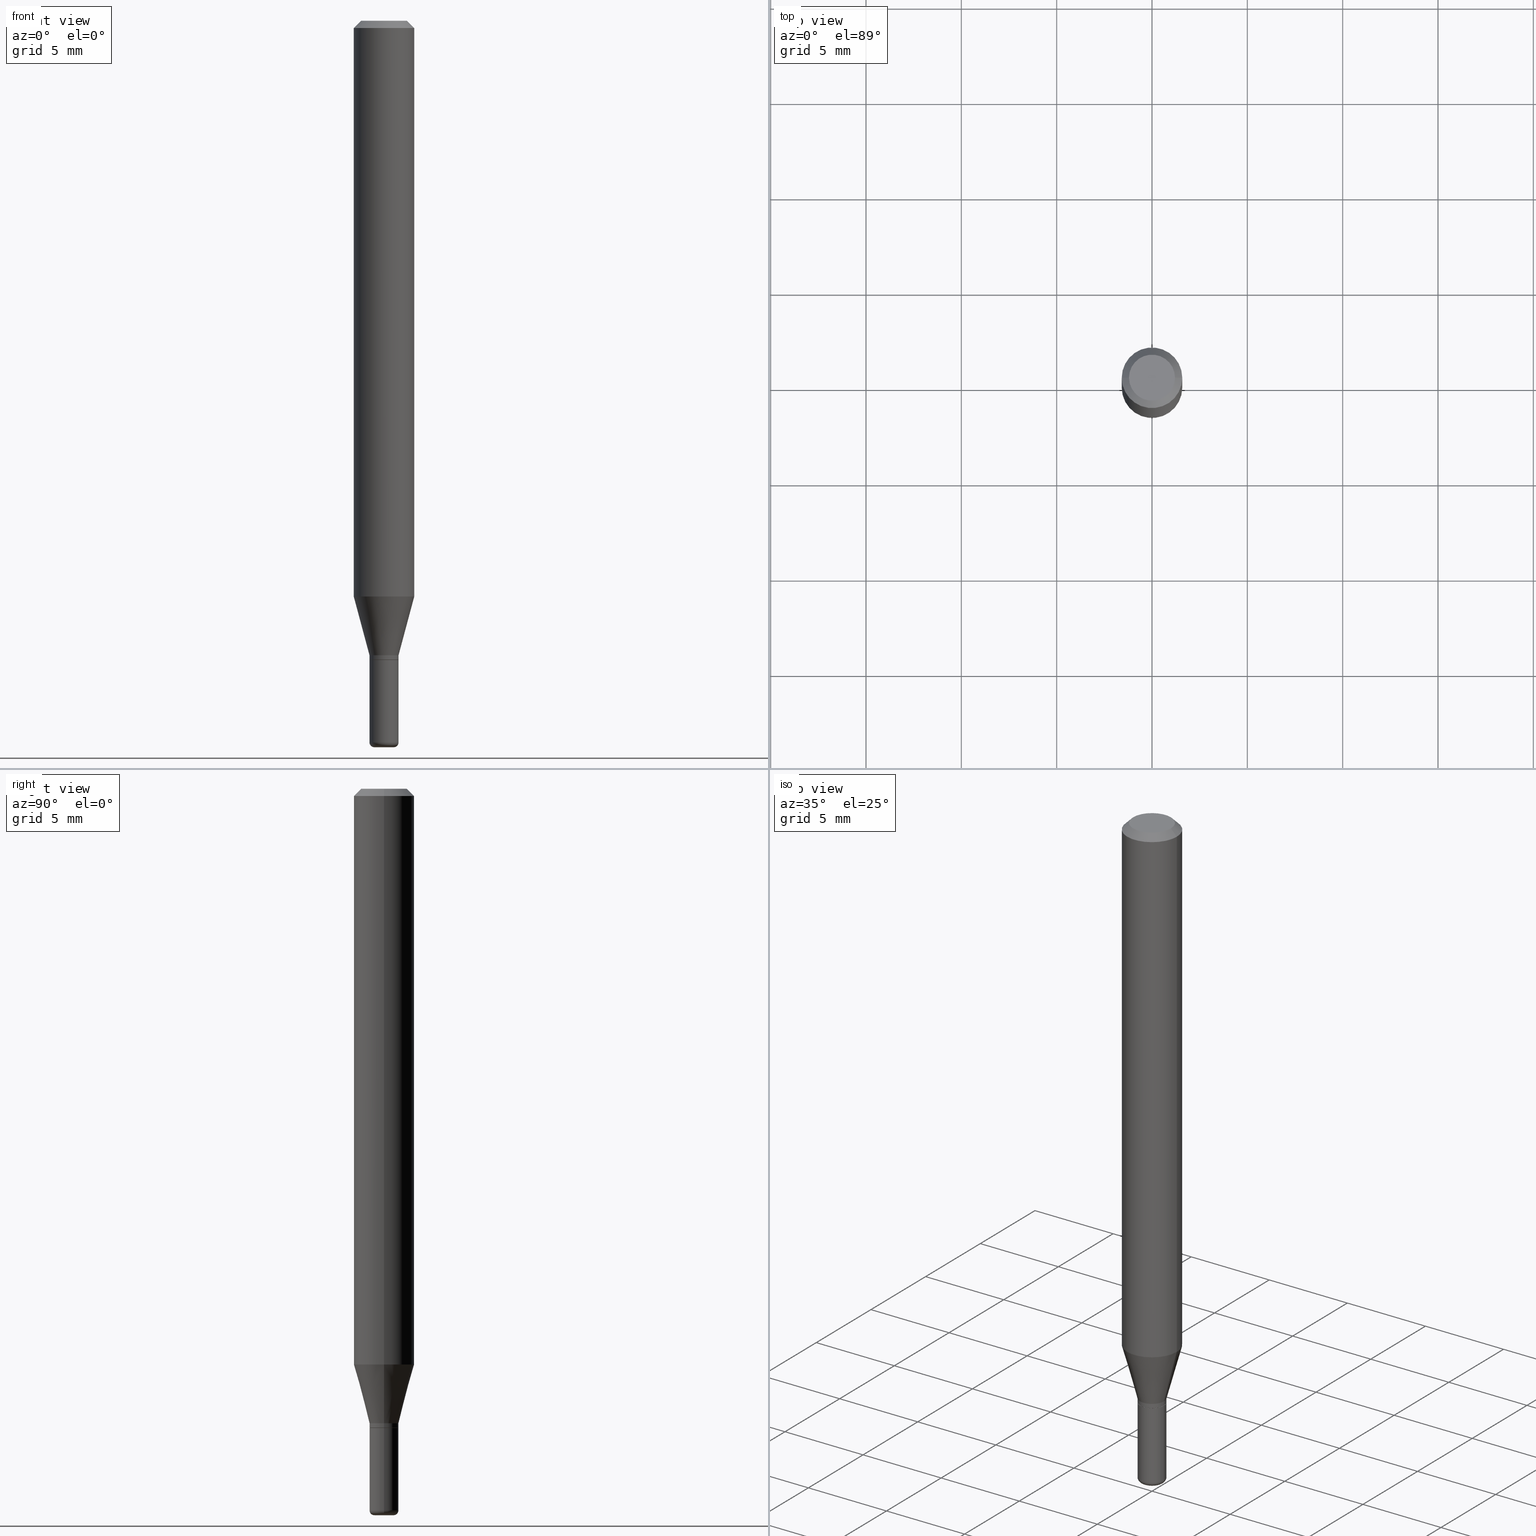
[diagram: canonical four-view strip — front | top / right | iso, engineering-drawing reading convention]
A machine part, canonical four-view strip (front | top / right | iso — engineering-drawing reading convention). The complete STEP part file that produces these views, byte-faithful:
ISO-10303-21;
HEADER;
FILE_DESCRIPTION (( 'STEP AP203' ),
    '1' );
FILE_NAME ('08677.STEP',
    '2024-02-29T20:19:13',
    ( '' ),
    ( '' ),
    'SwSTEP 2.0',
    'SolidWorks 2023',
    '' );
FILE_SCHEMA (( 'CONFIG_CONTROL_DESIGN' ));
ENDSEC;

DATA;
#1 = DIRECTION ( 'NONE',  ( -2.445468806185136597E-29, 3.491481338843145583E-15, 1.000000000000000000 ) ) ;
#2 =( CONVERSION_BASED_UNIT ( 'INCH', #357 ) LENGTH_UNIT ( ) NAMED_UNIT ( #245 ) );
#3 = CC_DESIGN_PERSON_AND_ORGANIZATION_ASSIGNMENT ( #103, #423, ( #512 ) ) ;
#4 = COORDINATED_UNIVERSAL_TIME_OFFSET ( 5, 0, .BEHIND. ) ;
#5 = CARTESIAN_POINT ( 'NONE',  ( -6.680649051745406845E-45, 9.538196290434862081E-31, 2.731847993664263218E-16 ) ) ;
#6 = CIRCLE ( 'NONE', #300, 0.009999999999999944697 ) ;
#7 =( NAMED_UNIT ( * ) SI_UNIT ( $, .STERADIAN. ) SOLID_ANGLE_UNIT ( ) );
#8 = MANIFOLD_SOLID_BREP ( 'Body-Move/Copy2[1]', #140 ) ;
#9 = EDGE_CURVE ( 'NONE', #190, #275, #513, .T. ) ;
#10 = DIRECTION ( 'NONE',  ( -0.7071067811865479058, 2.468850131082261005E-15, -0.7071067811865471286 ) ) ;
#11 = AXIS2_PLACEMENT_3D ( 'NONE', #143, #45, #207 ) ;
#12 = PERSON_AND_ORGANIZATION ( #208, #430 ) ;
#13 = AXIS2_PLACEMENT_3D ( 'NONE', #287, #46, #321 ) ;
#14 = ORIENTED_EDGE ( 'NONE', *, *, #517, .T. ) ;
#15 = CARTESIAN_POINT ( 'NONE',  ( -0.04750000000000000749, 3.578768372314221353E-16, 2.731847993664239060E-16 ) ) ;
#16 = FACE_OUTER_BOUND ( 'NONE', #494, .T. ) ;
#17 = EDGE_CURVE ( 'NONE', #500, #226, #242, .T. ) ;
#18 = DIRECTION ( 'NONE',  ( 1.000000000000000000, -6.982962677686282488E-15, 0.000000000000000000 ) ) ;
#19 = CARTESIAN_POINT ( 'NONE',  ( -0.02999999999999996073, 2.131628207280297767E-16, -1.475680527076469955E-30 ) ) ;
#20 = ORIENTED_EDGE ( 'NONE', *, *, #153, .F. ) ;
#21 = CARTESIAN_POINT ( 'NONE',  ( 0.000000000000000000, 0.000000000000000000, 0.000000000000000000 ) ) ;
#22 = DIRECTION ( 'NONE',  ( -2.445468806185136597E-29, 3.491481338843145583E-15, 1.000000000000000000 ) ) ;
#23 = SECURITY_CLASSIFICATION_LEVEL ( 'unclassified' ) ;
#24 = CIRCLE ( 'NONE', #13, 0.04750000000000000749 ) ;
#25 = CARTESIAN_POINT ( 'NONE',  ( 3.668203209277632395E-31, -5.237222008264614861E-17, -0.01499999999999970281 ) ) ;
#26 = ADVANCED_FACE ( 'NONE', ( #311 ), #389, .F. ) ;
#27 = ORIENTED_EDGE ( 'NONE', *, *, #305, .T. ) ;
#28 = VERTEX_POINT ( 'NONE', #251 ) ;
#29 = DIRECTION ( 'NONE',  ( -2.445468806185136597E-29, 3.491481338843145583E-15, 1.000000000000000000 ) ) ;
#30 = APPROVAL_STATUS ( 'not_yet_approved' ) ;
#31 = ORIENTED_EDGE ( 'NONE', *, *, #364, .T. ) ;
#32 = AXIS2_PLACEMENT_3D ( 'NONE', #431, #471, #160 ) ;
#33 = AXIS2_PLACEMENT_3D ( 'NONE', #5, #106, #368 ) ;
#34 = ORIENTED_EDGE ( 'NONE', *, *, #351, .F. ) ;
#35 = VERTEX_POINT ( 'NONE', #86 ) ;
#36 = EDGE_CURVE ( 'NONE', #195, #63, #255, .T. ) ;
#37 = EDGE_LOOP ( 'NONE', ( #113, #406, #267, #239 ) ) ;
#38 = DIRECTION ( 'NONE',  ( 1.000000000000000000, -6.982962677686265922E-15, 4.876176775795935793E-29 ) ) ;
#39 = DIRECTION ( 'NONE',  ( -2.445468806185136597E-29, 3.491481338843145583E-15, 1.000000000000000000 ) ) ;
#40 = CC_DESIGN_PERSON_AND_ORGANIZATION_ASSIGNMENT ( #342, #286, ( #204 ) ) ;
#41 = LINE ( 'NONE', #353, #149 ) ;
#42 = PRODUCT_DEFINITION_SHAPE ( 'NONE', 'NONE',  #201 ) ;
#43 = AXIS2_PLACEMENT_3D ( 'NONE', #181, #499, #400 ) ;
#44 = LOCAL_TIME ( 15, 19, 13.00000000000000000, #132 ) ;
#45 = DIRECTION ( 'NONE',  ( -2.445468806185136597E-29, 3.491481338843145583E-15, 1.000000000000000000 ) ) ;
#46 = DIRECTION ( 'NONE',  ( -2.445468806185136597E-29, 3.491481338843145583E-15, 1.000000000000000000 ) ) ;
#47 = FACE_OUTER_BOUND ( 'NONE', #505, .T. ) ;
#48 = DATE_AND_TIME ( #437, #44 ) ;
#49 = AXIS2_PLACEMENT_3D ( 'NONE', #374, #295, #333 ) ;
#50 = AXIS2_PLACEMENT_3D ( 'NONE', #64, #232, #258 ) ;
#51 = LINE ( 'NONE', #218, #122 ) ;
#52 = EDGE_CURVE ( 'NONE', #28, #195, #213, .T. ) ;
#53 = ORIENTED_EDGE ( 'NONE', *, *, #387, .T. ) ;
#54 = DIRECTION ( 'NONE',  ( 7.105427357601001859E-15, 1.000000000000000000, -3.491481338843145583E-15 ) ) ;
#55 = CARTESIAN_POINT ( 'NONE',  ( 3.228018824164380442E-29, -4.608755367272952437E-15, -1.320000000000000062 ) ) ;
#56 = ORIENTED_EDGE ( 'NONE', *, *, #36, .T. ) ;
#57 = CARTESIAN_POINT ( 'NONE',  ( -0.02999999999999997113, 2.131628207280298507E-16, -1.475680527076470305E-30 ) ) ;
#58 = DIRECTION ( 'NONE',  ( -0.7071067811866199593, 7.493145998870616062E-15, 0.7071067811864750752 ) ) ;
#59 = ORIENTED_EDGE ( 'NONE', *, *, #351, .T. ) ;
#60 = ADVANCED_FACE ( 'NONE', ( #47 ), #252, .T. ) ;
#61 = CARTESIAN_POINT ( 'NONE',  ( 3.668203209277704895E-29, -5.237222008264718177E-15, -1.500000000000000222 ) ) ;
#62 = DIRECTION ( 'NONE',  ( 2.438088387897960049E-29, -3.491481338843145188E-15, -1.000000000000000000 ) ) ;
#63 = VERTEX_POINT ( 'NONE', #395 ) ;
#64 = CARTESIAN_POINT ( 'NONE',  ( 0.000000000000000000, 0.000000000000000000, 0.000000000000000000 ) ) ;
#65 = PLANE ( 'NONE',  #515 ) ;
#66 = ORIENTED_EDGE ( 'NONE', *, *, #467, .F. ) ;
#67 = AXIS2_PLACEMENT_3D ( 'NONE', #417, #29, #265 ) ;
#68 = DIRECTION ( 'NONE',  ( 1.000000000000000000, -6.982962677686270655E-15, 0.000000000000000000 ) ) ;
#69 = CC_DESIGN_APPROVAL ( #510, ( #201 ) ) ;
#70 = ORIENTED_EDGE ( 'NONE', *, *, #216, .F. ) ;
#71 = ORIENTED_EDGE ( 'NONE', *, *, #194, .F. ) ;
#72 = ORIENTED_EDGE ( 'NONE', *, *, #77, .T. ) ;
#73 = ORIENTED_EDGE ( 'NONE', *, *, #432, .T. ) ;
#74 = ORIENTED_EDGE ( 'NONE', *, *, #477, .T. ) ;
#75 = CIRCLE ( 'NONE', #212, 0.02999999999999997113 ) ;
#76 = CONICAL_SURFACE ( 'NONE', #189, 0.06250000000000000000, 0.7853981633974488341 ) ;
#77 = EDGE_CURVE ( 'NONE', #28, #107, #496, .T. ) ;
#78 = PERSON_AND_ORGANIZATION ( #208, #430 ) ;
#79 = EDGE_LOOP ( 'NONE', ( #373, #241, #468, #466 ) ) ;
#80 = DIRECTION ( 'NONE',  ( -6.982962677686266711E-15, -1.000000000000000000, 3.491481338843145583E-15 ) ) ;
#81 = CARTESIAN_POINT ( 'NONE',  ( 0.000000000000000000, 0.000000000000000000, 0.000000000000000000 ) ) ;
#82 = PERSON_AND_ORGANIZATION_ROLE ( 'creator' ) ;
#83 =( GEOMETRIC_REPRESENTATION_CONTEXT ( 3 ) GLOBAL_UNCERTAINTY_ASSIGNED_CONTEXT ( ( #139 ) ) GLOBAL_UNIT_ASSIGNED_CONTEXT ( ( #2, #125, #7 ) ) REPRESENTATION_CONTEXT ( 'NONE', 'WORKASPACE' ) );
#84 = ADVANCED_FACE ( 'NONE', ( #479 ), #210, .T. ) ;
#85 = DIRECTION ( 'NONE',  ( 1.000000000000000000, -6.982962677686281699E-15, 0.000000000000000000 ) ) ;
#86 = CARTESIAN_POINT ( 'NONE',  ( -0.02999999999999994338, -4.692368460346590421E-15, -1.490000000000000213 ) ) ;
#87 = CARTESIAN_POINT ( 'NONE',  ( 0.02000000000000000042, -5.341966448430013913E-15, -1.490000000000000213 ) ) ;
#88 = EDGE_CURVE ( 'NONE', #514, #183, #177, .T. ) ;
#89 = AXIS2_PLACEMENT_3D ( 'NONE', #186, #148, #382 ) ;
#90 = AXIS2_PLACEMENT_3D ( 'NONE', #377, #341, #155 ) ;
#91 = DIRECTION ( 'NONE',  ( -2.445468806185136877E-29, 3.491481338843145188E-15, 1.000000000000000000 ) ) ;
#92 = ADVANCED_FACE ( 'NONE', ( #215 ), #486, .T. ) ;
#93 = ORIENTED_EDGE ( 'NONE', *, *, #467, .T. ) ;
#94 = CARTESIAN_POINT ( 'NONE',  ( 3.668203209277632395E-31, -5.237222008264614861E-17, -0.01499999999999970281 ) ) ;
#95 = DIRECTION ( 'NONE',  ( 0.7071067811866199593, -2.468850131083015945E-15, 0.7071067811864750752 ) ) ;
#96 = CONICAL_SURFACE ( 'NONE', #299, 0.06250000000000000000, 0.7853981633974488341 ) ;
#97 = CC_DESIGN_PERSON_AND_ORGANIZATION_ASSIGNMENT ( #230, #112, ( #512 ) ) ;
#98 = AXIS2_PLACEMENT_3D ( 'NONE', #259, #489, #414 ) ;
#99 = ORIENTED_EDGE ( 'NONE', *, *, #477, .F. ) ;
#100 = CC_DESIGN_APPROVAL ( #174, ( #512 ) ) ;
#101 = CARTESIAN_POINT ( 'NONE',  ( 0.02999999999999995726, -4.783329434215109894E-15, -1.310000000000000275 ) ) ;
#102 = FACE_OUTER_BOUND ( 'NONE', #474, .T. ) ;
#103 = PERSON_AND_ORGANIZATION ( #208, #430 ) ;
#104 = EDGE_LOOP ( 'NONE', ( #236, #31, #458, #231 ) ) ;
#105 = DIRECTION ( 'NONE',  ( -2.445468806185136597E-29, 3.491481338843145583E-15, 1.000000000000000000 ) ) ;
#106 = DIRECTION ( 'NONE',  ( -2.445468806185136597E-29, 3.491481338843145583E-15, 1.000000000000000000 ) ) ;
#107 = VERTEX_POINT ( 'NONE', #192 ) ;
#108 = PERSON_AND_ORGANIZATION ( #208, #430 ) ;
#109 = ORIENTED_EDGE ( 'NONE', *, *, #269, .T. ) ;
#110 = CARTESIAN_POINT ( 'NONE',  ( 0.02949999999999996722, -4.814752766264696958E-15, -1.320000000000000062 ) ) ;
#111 = ORIENTED_EDGE ( 'NONE', *, *, #405, .F. ) ;
#112 = PERSON_AND_ORGANIZATION_ROLE ( 'creator' ) ;
#113 = ORIENTED_EDGE ( 'NONE', *, *, #387, .F. ) ;
#114 = CONICAL_SURFACE ( 'NONE', #378, 0.02999999999999995726, 0.2617993877991494633 ) ;
#115 = EDGE_CURVE ( 'NONE', #419, #154, #509, .T. ) ;
#116 = MECHANICAL_CONTEXT ( 'NONE', #470, 'mechanical' ) ;
#117 = ORIENTED_EDGE ( 'NONE', *, *, #9, .T. ) ;
#118 = ORIENTED_EDGE ( 'NONE', *, *, #412, .F. ) ;
#119 = DATE_AND_TIME ( #457, #516 ) ;
#120 = APPROVAL_DATE_TIME ( #119, #167 ) ;
#121 = EDGE_LOOP ( 'NONE', ( #99, #219 ) ) ;
#122 = VECTOR ( 'NONE', #10, 39.37007874015748143 ) ;
#123 = CARTESIAN_POINT ( 'NONE',  ( 3.228018824164380442E-29, -4.608755367272952437E-15, -1.320000000000000062 ) ) ;
#124 = ORIENTED_EDGE ( 'NONE', *, *, #194, .T. ) ;
#125 =( NAMED_UNIT ( * ) PLANE_ANGLE_UNIT ( ) SI_UNIT ( $, .RADIAN. ) );
#126 = ADVANCED_FACE ( 'NONE', ( #224 ), #345, .T. ) ;
#127 = DIRECTION ( 'NONE',  ( -2.445468806185136597E-29, 3.491481338843145583E-15, 1.000000000000000000 ) ) ;
#128 = DIRECTION ( 'NONE',  ( -2.445468806185136597E-29, 3.491481338843145583E-15, 1.000000000000000000 ) ) ;
#129 = ADVANCED_FACE ( 'NONE', ( #491 ), #228, .F. ) ;
#130 = CARTESIAN_POINT ( 'NONE',  ( 3.643748521215853910E-29, -5.202307194876288105E-15, -1.490000000000000213 ) ) ;
#131 = AXIS2_PLACEMENT_3D ( 'NONE', #408, #293, #336 ) ;
#132 = COORDINATED_UNIVERSAL_TIME_OFFSET ( 5, 0, .BEHIND. ) ;
#133 = CIRCLE ( 'NONE', #318, 0.02999999999999999889 ) ;
#134 = FACE_OUTER_BOUND ( 'NONE', #223, .T. ) ;
#135 = PERSON_AND_ORGANIZATION ( #208, #430 ) ;
#136 = ADVANCED_FACE ( 'NONE', ( #442 ), #96, .T. ) ;
#137 = CARTESIAN_POINT ( 'NONE',  ( 3.668203209277704895E-29, -5.237222008264718177E-15, -1.500000000000000222 ) ) ;
#138 = CARTESIAN_POINT ( 'NONE',  ( 0.06250000000000000000, -4.364351673553916694E-16, 3.047610484872459871E-30 ) ) ;
#139 = UNCERTAINTY_MEASURE_WITH_UNIT (LENGTH_MEASURE( 1.000000000000000082E-05 ), #2, 'distance_accuracy_value', 'NONE');
#140 = CLOSED_SHELL ( 'NONE', ( #268, #443, #290, #92, #126, #129 ) ) ;
#141 = AXIS2_PLACEMENT_3D ( 'NONE', #451, #337, #326 ) ;
#142 = APPROVAL_PERSON_ORGANIZATION ( #78, #510, #166 ) ;
#143 = CARTESIAN_POINT ( 'NONE',  ( 0.000000000000000000, 0.000000000000000000, 0.000000000000000000 ) ) ;
#144 = CARTESIAN_POINT ( 'NONE',  ( -0.02949999999999996722, -4.399145260223723880E-15, -1.320000000000000062 ) ) ;
#145 = ORIENTED_EDGE ( 'NONE', *, *, #17, .F. ) ;
#146 = DIRECTION ( 'NONE',  ( -2.445468806185136597E-29, 3.491481338843145583E-15, 1.000000000000000000 ) ) ;
#147 = DIRECTION ( 'NONE',  ( 1.000000000000000000, -6.982962677686266711E-15, 0.000000000000000000 ) ) ;
#148 = DIRECTION ( 'NONE',  ( -2.438088387897960049E-29, 3.491481338843145188E-15, 1.000000000000000000 ) ) ;
#149 = VECTOR ( 'NONE', #165, 39.37007874015748143 ) ;
#150 = VERTEX_POINT ( 'NONE', #15 ) ;
#151 = CARTESIAN_POINT ( 'NONE',  ( -0.02949999999999996722, -4.396496033049612679E-15, -1.320000000000000062 ) ) ;
#152 = DIRECTION ( 'NONE',  ( 1.000000000000000000, -6.982962677686258822E-15, 0.000000000000000000 ) ) ;
#153 = EDGE_CURVE ( 'NONE', #107, #28, #75, .T. ) ;
#154 = VERTEX_POINT ( 'NONE', #449 ) ;
#155 = DIRECTION ( 'NONE',  ( 1.000000000000000000, -6.982962677686258822E-15, 0.000000000000000000 ) ) ;
#156 = FACE_OUTER_BOUND ( 'NONE', #104, .T. ) ;
#157 = CARTESIAN_POINT ( 'NONE',  ( 0.02999999999999997113, -2.094888803305877992E-16, 1.462853032738779302E-30 ) ) ;
#158 = EDGE_CURVE ( 'NONE', #340, #63, #317, .T. ) ;
#159 = AXIS2_PLACEMENT_3D ( 'NONE', #123, #280, #38 ) ;
#160 = DIRECTION ( 'NONE',  ( 1.000000000000000000, -6.982962677686266711E-15, 0.000000000000000000 ) ) ;
#161 = EDGE_CURVE ( 'NONE', #35, #454, #180, .T. ) ;
#162 = EDGE_LOOP ( 'NONE', ( #346, #381, #34, #118 ) ) ;
#163 = ORIENTED_EDGE ( 'NONE', *, *, #158, .T. ) ;
#164 = CC_DESIGN_APPROVAL ( #167, ( #191 ) ) ;
#165 = DIRECTION ( 'NONE',  ( 0.7071067811865479058, -7.319954787623257623E-15, -0.7071067811865471286 ) ) ;
#166 = APPROVAL_ROLE ( '' ) ;
#167 = APPROVAL ( #339, 'UNSPECIFIED' ) ;
#168 = CARTESIAN_POINT ( 'NONE',  ( 0.000000000000000000, 0.000000000000000000, 0.000000000000000000 ) ) ;
#169 = DIRECTION ( 'NONE',  ( 1.000000000000000000, -6.982962677686266711E-15, 4.876176775795935793E-29 ) ) ;
#170 = DATE_AND_TIME ( #475, #319 ) ;
#171 = CIRCLE ( 'NONE', #90, 0.02949999999999996722 ) ;
#172 = DIRECTION ( 'NONE',  ( -2.445468806185136597E-29, 3.491481338843145583E-15, 1.000000000000000000 ) ) ;
#173 = ADVANCED_FACE ( 'NONE', ( #370 ), #260, .T. ) ;
#174 = APPROVAL ( #30, 'UNSPECIFIED' ) ;
#175 = DIRECTION ( 'NONE',  ( -2.445468806185136597E-29, 3.491481338843145583E-15, 1.000000000000000000 ) ) ;
#176 = LINE ( 'NONE', #144, #262 ) ;
#177 = CIRCLE ( 'NONE', #248, 0.02949999999999996722 ) ;
#178 = AXIS2_PLACEMENT_3D ( 'NONE', #283, #39, #436 ) ;
#179 = EDGE_LOOP ( 'NONE', ( #415, #27, #56, #462 ) ) ;
#180 = LINE ( 'NONE', #57, #315 ) ;
#181 = CARTESIAN_POINT ( 'NONE',  ( 3.203564136102529457E-29, -4.573840553884521577E-15, -1.310000000000000275 ) ) ;
#182 = PERSON_AND_ORGANIZATION_ROLE ( 'classification_officer' ) ;
#183 = VERTEX_POINT ( 'NONE', #151 ) ;
#184 = DIRECTION ( 'NONE',  ( -2.445468806185136597E-29, 3.491481338843145583E-15, 1.000000000000000000 ) ) ;
#185 = CARTESIAN_POINT ( 'NONE',  ( 3.203564136102529457E-29, -4.573840553884521577E-15, -1.310000000000000275 ) ) ;
#186 = CARTESIAN_POINT ( 'NONE',  ( 3.582686580359766038E-29, -5.359686688179453325E-15, -1.500000000000000222 ) ) ;
#187 = DIRECTION ( 'NONE',  ( 1.000000000000000000, -6.982962677686277755E-15, 0.000000000000000000 ) ) ;
#188 = EDGE_CURVE ( 'NONE', #514, #28, #446, .T. ) ;
#189 = AXIS2_PLACEMENT_3D ( 'NONE', #25, #193, #308 ) ;
#190 = VERTEX_POINT ( 'NONE', #455 ) ;
#191 = SECURITY_CLASSIFICATION ( '', '', #23 ) ;
#192 = CARTESIAN_POINT ( 'NONE',  ( -0.02999999999999997113, -4.393846805875501477E-15, -1.319500000000000117 ) ) ;
#193 = DIRECTION ( 'NONE',  ( 2.445468806185136597E-29, -3.491481338843145583E-15, -1.000000000000000000 ) ) ;
#194 = EDGE_CURVE ( 'NONE', #275, #454, #133, .T. ) ;
#195 = VERTEX_POINT ( 'NONE', #101 ) ;
#196 = CARTESIAN_POINT ( 'NONE',  ( 2.906949186529777550E-29, -4.150353017001681232E-15, -1.188708348754011546 ) ) ;
#197 = CALENDAR_DATE ( 2024, 29, 2 ) ;
#198 = EDGE_LOOP ( 'NONE', ( #386, #163, #384, #145 ) ) ;
#199 = CIRCLE ( 'NONE', #67, 0.02999999999999999889 ) ;
#200 = LOCAL_TIME ( 15, 19, 13.00000000000000000, #459 ) ;
#201 = PRODUCT_DEFINITION ( 'UNKNOWN', '', #512, #363 ) ;
#202 = ORIENTED_EDGE ( 'NONE', *, *, #52, .F. ) ;
#203 = EDGE_CURVE ( 'NONE', #454, #275, #199, .T. ) ;
#204 = PRODUCT ( '08677', '08677', '', ( #116 ) ) ;
#205 = ADVANCED_FACE ( 'NONE', ( #402 ), #413, .T. ) ;
#206 = DIRECTION ( 'NONE',  ( 1.000000000000000000, -6.982962677686282488E-15, 0.000000000000000000 ) ) ;
#207 = DIRECTION ( 'NONE',  ( 1.000000000000000000, -6.982962677686266711E-15, 4.876176775795935793E-29 ) ) ;
#208 = PERSON ( 'UNSPECIFIED', 'UNSPECIFIED', 'UNSPECIFIED', ('UNSPECIFIED'), ('UNSPECIFIED'), ('UNSPECIFIED') ) ;
#209 =( LENGTH_UNIT ( ) NAMED_UNIT ( * ) SI_UNIT ( $, .METRE. ) );
#210 = CYLINDRICAL_SURFACE ( 'NONE', #434, 0.02999999999999996073 ) ;
#211 = CYLINDRICAL_SURFACE ( 'NONE', #254, 0.02999999999999997113 ) ;
#212 = AXIS2_PLACEMENT_3D ( 'NONE', #344, #184, #488 ) ;
#213 = LINE ( 'NONE', #250, #463 ) ;
#214 = CIRCLE ( 'NONE', #98, 0.02999999999999995726 ) ;
#215 = FACE_OUTER_BOUND ( 'NONE', #425, .T. ) ;
#216 = EDGE_CURVE ( 'NONE', #183, #514, #171, .T. ) ;
#217 = DIRECTION ( 'NONE',  ( 1.000000000000000000, -6.982962677686258822E-15, 0.000000000000000000 ) ) ;
#218 = CARTESIAN_POINT ( 'NONE',  ( -0.06250000000000000000, 3.840629472727455270E-16, -0.01499999999999970281 ) ) ;
#219 = ORIENTED_EDGE ( 'NONE', *, *, #115, .F. ) ;
#220 = DIRECTION ( 'NONE',  ( -1.000000000000000000, 7.105427357600964782E-15, 0.000000000000000000 ) ) ;
#221 = DIRECTION ( 'NONE',  ( -2.445468806185136597E-29, 3.491481338843145583E-15, 1.000000000000000000 ) ) ;
#222 = CIRCLE ( 'NONE', #481, 0.06250000000000000000 ) ;
#223 = EDGE_LOOP ( 'NONE', ( #332, #306, #71, #401 ) ) ;
#224 = FACE_OUTER_BOUND ( 'NONE', #79, .T. ) ;
#225 = DIRECTION ( 'NONE',  ( -2.445468806185136597E-29, 3.491481338843145583E-15, 1.000000000000000000 ) ) ;
#226 = VERTEX_POINT ( 'NONE', #330 ) ;
#227 = EDGE_CURVE ( 'NONE', #419, #35, #385, .T. ) ;
#228 = PLANE ( 'NONE',  #89 ) ;
#229 = DIRECTION ( 'NONE',  ( 1.000000000000000000, -6.982962677686277755E-15, 0.000000000000000000 ) ) ;
#230 = PERSON_AND_ORGANIZATION ( #208, #430 ) ;
#231 = ORIENTED_EDGE ( 'NONE', *, *, #188, .F. ) ;
#232 = DIRECTION ( 'NONE',  ( -2.445468806185136597E-29, 3.491481338843145583E-15, 1.000000000000000000 ) ) ;
#233 = FACE_OUTER_BOUND ( 'NONE', #372, .T. ) ;
#234 = EDGE_LOOP ( 'NONE', ( #72, #53, #277, #202 ) ) ;
#235 = DIRECTION ( 'NONE',  ( 0.000000000000000000, 0.000000000000000000, 1.000000000000000000 ) ) ;
#236 = ORIENTED_EDGE ( 'NONE', *, *, #88, .T. ) ;
#237 = SHAPE_DEFINITION_REPRESENTATION ( #42, #404 ) ;
#238 = ORIENTED_EDGE ( 'NONE', *, *, #203, .T. ) ;
#239 = ORIENTED_EDGE ( 'NONE', *, *, #305, .F. ) ;
#240 = CC_DESIGN_DATE_AND_TIME_ASSIGNMENT ( #48, #360, ( #201 ) ) ;
#241 = ORIENTED_EDGE ( 'NONE', *, *, #115, .T. ) ;
#242 = CIRCLE ( 'NONE', #32, 0.06250000000000000000 ) ;
#243 = ORIENTED_EDGE ( 'NONE', *, *, #517, .F. ) ;
#244 = VECTOR ( 'NONE', #263, 39.37007874015748854 ) ;
#245 = DIMENSIONAL_EXPONENTS ( 1.000000000000000000, 0.000000000000000000, 0.000000000000000000, 0.000000000000000000, 0.000000000000000000, 0.000000000000000000, 0.000000000000000000 ) ;
#246 = APPROVAL_STATUS ( 'not_yet_approved' ) ;
#247 = EDGE_CURVE ( 'NONE', #63, #340, #292, .T. ) ;
#248 = AXIS2_PLACEMENT_3D ( 'NONE', #359, #175, #323 ) ;
#249 = CIRCLE ( 'NONE', #279, 0.02999999999999994338 ) ;
#250 = CARTESIAN_POINT ( 'NONE',  ( 0.02999999999999996073, -2.094888803305877499E-16, 1.462853032738778951E-30 ) ) ;
#251 = CARTESIAN_POINT ( 'NONE',  ( 0.02999999999999997113, -4.816498506934119251E-15, -1.319500000000000117 ) ) ;
#252 = CONICAL_SURFACE ( 'NONE', #278, 0.02949999999999996722, 0.7853981633975507526 ) ;
#253 = DIRECTION ( 'NONE',  ( -2.445468806185136877E-29, 3.491481338843145188E-15, 1.000000000000000000 ) ) ;
#254 = AXIS2_PLACEMENT_3D ( 'NONE', #81, #284, #169 ) ;
#255 = LINE ( 'NONE', #440, #441 ) ;
#256 = DIRECTION ( 'NONE',  ( -2.445468806185136877E-29, 3.491481338843145188E-15, 1.000000000000000000 ) ) ;
#257 = VERTEX_POINT ( 'NONE', #272 ) ;
#258 = DIRECTION ( 'NONE',  ( 1.000000000000000000, -6.982962677686266711E-15, 4.876176775795935793E-29 ) ) ;
#259 = CARTESIAN_POINT ( 'NONE',  ( 3.203564136102529457E-29, -4.573840553884521577E-15, -1.310000000000000275 ) ) ;
#260 = CYLINDRICAL_SURFACE ( 'NONE', #354, 0.06250000000000000000 ) ;
#261 = PLANE ( 'NONE',  #141 ) ;
#262 = VECTOR ( 'NONE', #58, 39.37007874015748143 ) ;
#263 = DIRECTION ( 'NONE',  ( -0.2588190451025207395, 5.211531920934546309E-15, 0.9659258262890682012 ) ) ;
#264 = ORIENTED_EDGE ( 'NONE', *, *, #203, .F. ) ;
#265 = DIRECTION ( 'NONE',  ( 1.000000000000000000, -6.982962677686268288E-15, 0.000000000000000000 ) ) ;
#266 = CARTESIAN_POINT ( 'NONE',  ( -0.06250000000000000000, -3.706263807151618616E-15, -1.188708348754011546 ) ) ;
#267 = ORIENTED_EDGE ( 'NONE', *, *, #52, .T. ) ;
#268 = ADVANCED_FACE ( 'NONE', ( #420 ), #358, .T. ) ;
#269 = EDGE_CURVE ( 'NONE', #257, #150, #347, .T. ) ;
#270 = DIRECTION ( 'NONE',  ( 1.000000000000000000, -6.982962677686268288E-15, 0.000000000000000000 ) ) ;
#271 = CALENDAR_DATE ( 2024, 29, 2 ) ;
#272 = CARTESIAN_POINT ( 'NONE',  ( 0.04750000000000000749, -4.035134999187568762E-16, 2.731847993664288856E-16 ) ) ;
#273 = VECTOR ( 'NONE', #91, 39.37007874015748143 ) ;
#274 = LOCAL_TIME ( 15, 19, 13.00000000000000000, #296 ) ;
#275 = VERTEX_POINT ( 'NONE', #492 ) ;
#276 = DATE_AND_TIME ( #197, #200 ) ;
#277 = ORIENTED_EDGE ( 'NONE', *, *, #361, .F. ) ;
#278 = AXIS2_PLACEMENT_3D ( 'NONE', #399, #1, #217 ) ;
#279 = AXIS2_PLACEMENT_3D ( 'NONE', #289, #478, #85 ) ;
#280 = DIRECTION ( 'NONE',  ( -2.438088387897960049E-29, 3.491481338843145188E-15, 1.000000000000000000 ) ) ;
#281 = CARTESIAN_POINT ( 'NONE',  ( -0.02999999999999999542, -4.692368460346590421E-15, -1.320000000000000062 ) ) ;
#282 = ADVANCED_FACE ( 'NONE', ( #294 ), #261, .F. ) ;
#283 = CARTESIAN_POINT ( 'NONE',  ( 3.643748521215853910E-29, -5.202307194876288105E-15, -1.490000000000000213 ) ) ;
#284 = DIRECTION ( 'NONE',  ( -2.445468806185136597E-29, 3.491481338843145583E-15, 1.000000000000000000 ) ) ;
#285 = AXIS2_PLACEMENT_3D ( 'NONE', #61, #146, #18 ) ;
#286 = PERSON_AND_ORGANIZATION_ROLE ( 'design_owner' ) ;
#287 = CARTESIAN_POINT ( 'NONE',  ( -6.680649051745406845E-45, 9.538196290434862081E-31, 2.731847993664263218E-16 ) ) ;
#288 = DIRECTION ( 'NONE',  ( 1.000000000000000000, -6.982962677686267499E-15, 4.876176775795936353E-29 ) ) ;
#289 = CARTESIAN_POINT ( 'NONE',  ( 3.643748521215853910E-29, -5.202307194876288105E-15, -1.490000000000000213 ) ) ;
#290 = ADVANCED_FACE ( 'NONE', ( #233 ), #65, .F. ) ;
#291 = CC_DESIGN_PERSON_AND_ORGANIZATION_ASSIGNMENT ( #135, #82, ( #201 ) ) ;
#292 = CIRCLE ( 'NONE', #324, 0.06250000000000000000 ) ;
#293 = DIRECTION ( 'NONE',  ( -2.445468806185136597E-29, 3.491481338843145583E-15, 1.000000000000000000 ) ) ;
#294 = FACE_OUTER_BOUND ( 'NONE', #376, .T. ) ;
#295 = DIRECTION ( 'NONE',  ( -2.445468806185136597E-29, 3.491481338843145583E-15, 1.000000000000000000 ) ) ;
#296 = COORDINATED_UNIVERSAL_TIME_OFFSET ( 5, 0, .BEHIND. ) ;
#297 = LINE ( 'NONE', #328, #244 ) ;
#298 = DIRECTION ( 'NONE',  ( -1.000000000000000000, 6.982962677686266711E-15, 0.000000000000000000 ) ) ;
#299 = AXIS2_PLACEMENT_3D ( 'NONE', #94, #498, #298 ) ;
#300 = AXIS2_PLACEMENT_3D ( 'NONE', #87, #80, #390 ) ;
#301 = ORIENTED_EDGE ( 'NONE', *, *, #188, .T. ) ;
#302 = DIRECTION ( 'NONE',  ( -2.445468806185136877E-29, 3.491481338843145188E-15, 1.000000000000000000 ) ) ;
#303 = DIRECTION ( 'NONE',  ( -2.445468806185136877E-29, 3.491481338843145188E-15, 1.000000000000000000 ) ) ;
#304 = ORIENTED_EDGE ( 'NONE', *, *, #161, .F. ) ;
#305 = EDGE_CURVE ( 'NONE', #352, #195, #511, .T. ) ;
#306 = ORIENTED_EDGE ( 'NONE', *, *, #161, .T. ) ;
#307 = CARTESIAN_POINT ( 'NONE',  ( -0.02000000000000000042, -5.060198647724267153E-15, -1.490000000000000213 ) ) ;
#308 = DIRECTION ( 'NONE',  ( -1.000000000000000000, 6.982962677686266711E-15, 0.000000000000000000 ) ) ;
#309 = ORIENTED_EDGE ( 'NONE', *, *, #426, .F. ) ;
#310 = DIRECTION ( 'NONE',  ( 1.000000000000000000, 0.000000000000000000, 0.000000000000000000 ) ) ;
#311 = FACE_OUTER_BOUND ( 'NONE', #365, .T. ) ;
#312 = ORIENTED_EDGE ( 'NONE', *, *, #216, .T. ) ;
#313 = ADVANCED_FACE ( 'NONE', ( #102 ), #76, .T. ) ;
#314 = ORIENTED_EDGE ( 'NONE', *, *, #508, .F. ) ;
#315 = VECTOR ( 'NONE', #302, 39.37007874015748143 ) ;
#316 = DIRECTION ( 'NONE',  ( -2.445468806185136597E-29, 3.491481338843145583E-15, 1.000000000000000000 ) ) ;
#317 = CIRCLE ( 'NONE', #49, 0.06250000000000000000 ) ;
#318 = AXIS2_PLACEMENT_3D ( 'NONE', #502, #105, #270 ) ;
#319 = LOCAL_TIME ( 15, 19, 13.00000000000000000, #4 ) ;
#320 = CARTESIAN_POINT ( 'NONE',  ( 3.226796089761288762E-29, -4.607009626603530934E-15, -1.319500000000000117 ) ) ;
#321 = DIRECTION ( 'NONE',  ( 1.000000000000000000, -6.982962677686266711E-15, 4.852736867747365086E-29 ) ) ;
#322 = DIRECTION ( 'NONE',  ( 0.2588190451025207395, 1.565188264969626109E-15, 0.9659258262890682012 ) ) ;
#323 = DIRECTION ( 'NONE',  ( 1.000000000000000000, -6.982962677686258822E-15, 0.000000000000000000 ) ) ;
#324 = AXIS2_PLACEMENT_3D ( 'NONE', #196, #460, #68 ) ;
#325 = APPLICATION_CONTEXT ( 'configuration controlled 3d designs of mechanical parts and assemblies' ) ;
#326 = DIRECTION ( 'NONE',  ( -1.000000000000000000, 6.982962677686265922E-15, -4.876176775795935793E-29 ) ) ;
#327 = COORDINATED_UNIVERSAL_TIME_OFFSET ( 5, 0, .BEHIND. ) ;
#328 = CARTESIAN_POINT ( 'NONE',  ( -0.02999999999999995726, -4.360677733156492121E-15, -1.310000000000000275 ) ) ;
#329 = EDGE_LOOP ( 'NONE', ( #74, #501, #314, #309 ) ) ;
#330 = CARTESIAN_POINT ( 'NONE',  ( 0.06250000000000000000, -4.888073874380378612E-16, -0.01499999999999970281 ) ) ;
#331 = LINE ( 'NONE', #19, #366 ) ;
#332 = ORIENTED_EDGE ( 'NONE', *, *, #508, .T. ) ;
#333 = DIRECTION ( 'NONE',  ( 1.000000000000000000, -6.982962677686270655E-15, 0.000000000000000000 ) ) ;
#334 = CC_DESIGN_DATE_AND_TIME_ASSIGNMENT ( #493, #452, ( #191 ) ) ;
#335 = ORIENTED_EDGE ( 'NONE', *, *, #36, .F. ) ;
#336 = DIRECTION ( 'NONE',  ( 1.000000000000000000, -6.982962677686280910E-15, 4.883557194083117946E-29 ) ) ;
#337 = DIRECTION ( 'NONE',  ( 2.438088387897960049E-29, -3.491481338843145188E-15, -1.000000000000000000 ) ) ;
#338 = AXIS2_PLACEMENT_3D ( 'NONE', #348, #235, #310 ) ;
#339 = APPROVAL_STATUS ( 'not_yet_approved' ) ;
#340 = VERTEX_POINT ( 'NONE', #266 ) ;
#341 = DIRECTION ( 'NONE',  ( -2.445468806185136597E-29, 3.491481338843145583E-15, 1.000000000000000000 ) ) ;
#342 = PERSON_AND_ORGANIZATION ( #208, #430 ) ;
#343 = ORIENTED_EDGE ( 'NONE', *, *, #17, .T. ) ;
#344 = CARTESIAN_POINT ( 'NONE',  ( 3.226796089761288762E-29, -4.607009626603530934E-15, -1.319500000000000117 ) ) ;
#345 = TOROIDAL_SURFACE ( 'NONE', #131, 0.02000000000000000042, 0.009999999999999946432 ) ;
#346 = ORIENTED_EDGE ( 'NONE', *, *, #247, .T. ) ;
#347 = CIRCLE ( 'NONE', #33, 0.04750000000000000749 ) ;
#348 = CARTESIAN_POINT ( 'NONE',  ( 0.000000000000000000, 0.000000000000000000, 0.000000000000000000 ) ) ;
#349 = EDGE_LOOP ( 'NONE', ( #411, #93, #59, #111 ) ) ;
#350 = MANIFOLD_SOLID_BREP ( 'Body-Move/Copy2[2]', #447 ) ;
#351 = EDGE_CURVE ( 'NONE', #226, #500, #222, .T. ) ;
#352 = VERTEX_POINT ( 'NONE', #371 ) ;
#353 = CARTESIAN_POINT ( 'NONE',  ( 0.06250000000000000000, -4.811533449433669144E-16, -0.01499999999999970281 ) ) ;
#354 = AXIS2_PLACEMENT_3D ( 'NONE', #21, #507, #367 ) ;
#355 = CARTESIAN_POINT ( 'NONE',  ( 0.000000000000000000, 0.000000000000000000, 0.000000000000000000 ) ) ;
#356 = CARTESIAN_POINT ( 'NONE',  ( -0.06250000000000000000, -1.657273408692100948E-15, -0.01499999999999970281 ) ) ;
#357 = LENGTH_MEASURE_WITH_UNIT ( LENGTH_MEASURE( 0.02539999999999999897 ), #209 );
#358 = TOROIDAL_SURFACE ( 'NONE', #407, 0.02000000000000000042, 0.009999999999999946432 ) ;
#359 = CARTESIAN_POINT ( 'NONE',  ( 3.228018824164380442E-29, -4.608755367272952437E-15, -1.320000000000000062 ) ) ;
#360 = DATE_TIME_ROLE ( 'creation_date' ) ;
#361 = EDGE_CURVE ( 'NONE', #195, #352, #214, .T. ) ;
#362 = DIRECTION ( 'NONE',  ( -1.000000000000000000, 6.982962677686265922E-15, -4.876176775795935793E-29 ) ) ;
#363 = DESIGN_CONTEXT ( 'detailed design', #325, 'design' ) ;
#364 = EDGE_CURVE ( 'NONE', #183, #107, #176, .T. ) ;
#365 = EDGE_LOOP ( 'NONE', ( #445, #70 ) ) ;
#366 = VECTOR ( 'NONE', #303, 39.37007874015748143 ) ;
#367 = DIRECTION ( 'NONE',  ( 1.000000000000000000, -6.982962677686266711E-15, 4.876176775795935793E-29 ) ) ;
#368 = DIRECTION ( 'NONE',  ( 1.000000000000000000, -6.982962677686266711E-15, 4.852736867747365086E-29 ) ) ;
#369 = ORIENTED_EDGE ( 'NONE', *, *, #247, .F. ) ;
#370 = FACE_OUTER_BOUND ( 'NONE', #198, .T. ) ;
#371 = CARTESIAN_POINT ( 'NONE',  ( -0.02999999999999995726, -4.033470770154055368E-15, -1.310000000000000275 ) ) ;
#372 = EDGE_LOOP ( 'NONE', ( #124, #238 ) ) ;
#373 = ORIENTED_EDGE ( 'NONE', *, *, #227, .F. ) ;
#374 = CARTESIAN_POINT ( 'NONE',  ( 2.906949186529777550E-29, -4.150353017001681232E-15, -1.188708348754011546 ) ) ;
#375 = FACE_OUTER_BOUND ( 'NONE', #179, .T. ) ;
#376 = EDGE_LOOP ( 'NONE', ( #14, #109 ) ) ;
#377 = CARTESIAN_POINT ( 'NONE',  ( 3.228018824164380442E-29, -4.608755367272952437E-15, -1.320000000000000062 ) ) ;
#378 = AXIS2_PLACEMENT_3D ( 'NONE', #185, #22, #187 ) ;
#379 = ADVANCED_FACE ( 'NONE', ( #16 ), #422, .T. ) ;
#380 = APPROVAL_ROLE ( '' ) ;
#381 = ORIENTED_EDGE ( 'NONE', *, *, #396, .T. ) ;
#382 = DIRECTION ( 'NONE',  ( 1.000000000000000000, -6.982962677686265922E-15, 4.876176775795935793E-29 ) ) ;
#383 = ADVANCED_FACE ( 'NONE', ( #156 ), #465, .T. ) ;
#384 = ORIENTED_EDGE ( 'NONE', *, *, #412, .T. ) ;
#385 = CIRCLE ( 'NONE', #393, 0.009999999999999944697 ) ;
#386 = ORIENTED_EDGE ( 'NONE', *, *, #396, .F. ) ;
#387 = EDGE_CURVE ( 'NONE', #107, #352, #331, .T. ) ;
#388 = APPLICATION_PROTOCOL_DEFINITION ( 'international standard', 'config_control_design', 1994, #470 ) ;
#389 = PLANE ( 'NONE',  #159 ) ;
#390 = DIRECTION ( 'NONE',  ( 1.000000000000000000, -6.982962677686274599E-15, 0.000000000000000000 ) ) ;
#391 = FACE_OUTER_BOUND ( 'NONE', #234, .T. ) ;
#392 = ADVANCED_FACE ( 'NONE', ( #375 ), #114, .T. ) ;
#393 = AXIS2_PLACEMENT_3D ( 'NONE', #307, #54, #220 ) ;
#394 = DIRECTION ( 'NONE',  ( 1.000000000000000000, -6.982962677686280910E-15, 4.883557194083117946E-29 ) ) ;
#395 = CARTESIAN_POINT ( 'NONE',  ( 0.06250000000000000000, -4.586788184357073690E-15, -1.188708348754011546 ) ) ;
#396 = EDGE_CURVE ( 'NONE', #340, #500, #456, .T. ) ;
#397 = CIRCLE ( 'NONE', #178, 0.02999999999999994338 ) ;
#398 = DIRECTION ( 'NONE',  ( 1.000000000000000000, -6.982962677686274599E-15, 0.000000000000000000 ) ) ;
#399 = CARTESIAN_POINT ( 'NONE',  ( 3.228018824164380442E-29, -4.608755367272952437E-15, -1.320000000000000062 ) ) ;
#400 = DIRECTION ( 'NONE',  ( 1.000000000000000000, -6.982962677686277755E-15, 0.000000000000000000 ) ) ;
#401 = ORIENTED_EDGE ( 'NONE', *, *, #9, .F. ) ;
#402 = FACE_OUTER_BOUND ( 'NONE', #162, .T. ) ;
#403 = CARTESIAN_POINT ( 'NONE',  ( 3.203564136102529457E-29, -4.573840553884521577E-15, -1.310000000000000275 ) ) ;
#404 = ADVANCED_BREP_SHAPE_REPRESENTATION ( '08677', ( #8, #350, #338 ), #83 ) ;
#405 = EDGE_CURVE ( 'NONE', #150, #500, #51, .T. ) ;
#406 = ORIENTED_EDGE ( 'NONE', *, *, #153, .T. ) ;
#407 = AXIS2_PLACEMENT_3D ( 'NONE', #130, #128, #394 ) ;
#408 = CARTESIAN_POINT ( 'NONE',  ( 3.643748521215853910E-29, -5.202307194876288105E-15, -1.490000000000000213 ) ) ;
#409 = APPROVAL_PERSON_ORGANIZATION ( #506, #174, #495 ) ;
#410 = CARTESIAN_POINT ( 'NONE',  ( 2.094888803306202411E-16, 0.02999999999999539146, -1.320000000000000062 ) ) ;
#411 = ORIENTED_EDGE ( 'NONE', *, *, #269, .F. ) ;
#412 = EDGE_CURVE ( 'NONE', #63, #226, #484, .T. ) ;
#413 = CYLINDRICAL_SURFACE ( 'NONE', #50, 0.06250000000000000000 ) ;
#414 = DIRECTION ( 'NONE',  ( 1.000000000000000000, -6.982962677686277755E-15, 0.000000000000000000 ) ) ;
#415 = ORIENTED_EDGE ( 'NONE', *, *, #416, .F. ) ;
#416 = EDGE_CURVE ( 'NONE', #352, #340, #297, .T. ) ;
#417 = CARTESIAN_POINT ( 'NONE',  ( 3.228018824164380442E-29, -4.608755367272952437E-15, -1.320000000000000062 ) ) ;
#418 = CARTESIAN_POINT ( 'NONE',  ( 3.668203209277632395E-31, -5.237222008264614861E-17, -0.01499999999999970281 ) ) ;
#419 = VERTEX_POINT ( 'NONE', #439 ) ;
#420 = FACE_OUTER_BOUND ( 'NONE', #329, .T. ) ;
#421 = VECTOR ( 'NONE', #469, 39.37007874015748143 ) ;
#422 = CONICAL_SURFACE ( 'NONE', #472, 0.02999999999999995726, 0.2617993877991494633 ) ;
#423 = PERSON_AND_ORGANIZATION_ROLE ( 'design_supplier' ) ;
#424 = ORIENTED_EDGE ( 'NONE', *, *, #416, .T. ) ;
#425 = EDGE_LOOP ( 'NONE', ( #304, #73, #117, #264 ) ) ;
#426 = EDGE_CURVE ( 'NONE', #154, #190, #6, .T. ) ;
#427 = CC_DESIGN_PERSON_AND_ORGANIZATION_ASSIGNMENT ( #108, #182, ( #191 ) ) ;
#428 = AXIS2_PLACEMENT_3D ( 'NONE', #320, #172, #398 ) ;
#429 = CIRCLE ( 'NONE', #497, 0.02000000000000000389 ) ;
#430 = ORGANIZATION ( 'UNSPECIFIED', 'UNSPECIFIED', '' ) ;
#431 = CARTESIAN_POINT ( 'NONE',  ( 3.668203209277632395E-31, -5.237222008264614861E-17, -0.01499999999999970281 ) ) ;
#432 = EDGE_CURVE ( 'NONE', #35, #190, #397, .T. ) ;
#433 = APPROVAL_DATE_TIME ( #170, #510 ) ;
#434 = AXIS2_PLACEMENT_3D ( 'NONE', #168, #482, #288 ) ;
#435 = VECTOR ( 'NONE', #95, 39.37007874015748143 ) ;
#436 = DIRECTION ( 'NONE',  ( 1.000000000000000000, -6.982962677686281699E-15, 0.000000000000000000 ) ) ;
#437 = CALENDAR_DATE ( 2024, 29, 2 ) ;
#438 = PRODUCT_RELATED_PRODUCT_CATEGORY ( 'detail', '', ( #204 ) ) ;
#439 = CARTESIAN_POINT ( 'NONE',  ( -0.02000000000000000389, -5.042128917630478726E-15, -1.500000000000000222 ) ) ;
#440 = CARTESIAN_POINT ( 'NONE',  ( 0.02999999999999995726, -4.783329434215109894E-15, -1.310000000000000275 ) ) ;
#441 = VECTOR ( 'NONE', #322, 39.37007874015748854 ) ;
#442 = FACE_OUTER_BOUND ( 'NONE', #349, .T. ) ;
#443 = ADVANCED_FACE ( 'NONE', ( #134 ), #211, .T. ) ;
#444 = APPROVAL_DATE_TIME ( #276, #174 ) ;
#445 = ORIENTED_EDGE ( 'NONE', *, *, #88, .F. ) ;
#446 = LINE ( 'NONE', #110, #435 ) ;
#447 = CLOSED_SHELL ( 'NONE', ( #453, #383, #136, #205, #379, #392, #173, #313, #282, #26, #60, #84 ) ) ;
#448 = VECTOR ( 'NONE', #256, 39.37007874015748143 ) ;
#449 = CARTESIAN_POINT ( 'NONE',  ( 0.02000000000000000389, -5.376881261818443984E-15, -1.500000000000000222 ) ) ;
#450 = CC_DESIGN_SECURITY_CLASSIFICATION ( #191, ( #512 ) ) ;
#451 = CARTESIAN_POINT ( 'NONE',  ( 3.316907271900976589E-16, 0.04750000000000000749, -2.925296391183627249E-17 ) ) ;
#452 = DATE_TIME_ROLE ( 'classification_date' ) ;
#453 = ADVANCED_FACE ( 'NONE', ( #391 ), #518, .T. ) ;
#454 = VERTEX_POINT ( 'NONE', #281 ) ;
#455 = CARTESIAN_POINT ( 'NONE',  ( 0.02999999999999994338, -5.411796075206875633E-15, -1.490000000000000213 ) ) ;
#456 = LINE ( 'NONE', #461, #448 ) ;
#457 = CALENDAR_DATE ( 2024, 29, 2 ) ;
#458 = ORIENTED_EDGE ( 'NONE', *, *, #77, .F. ) ;
#459 = COORDINATED_UNIVERSAL_TIME_OFFSET ( 5, 0, .BEHIND. ) ;
#460 = DIRECTION ( 'NONE',  ( -2.445468806185136597E-29, 3.491481338843145583E-15, 1.000000000000000000 ) ) ;
#461 = CARTESIAN_POINT ( 'NONE',  ( -0.06250000000000000000, 4.440892098500626162E-16, -3.074334431409316114E-30 ) ) ;
#462 = ORIENTED_EDGE ( 'NONE', *, *, #158, .F. ) ;
#463 = VECTOR ( 'NONE', #253, 39.37007874015748143 ) ;
#464 = AXIS2_PLACEMENT_3D ( 'NONE', #355, #316, #476 ) ;
#465 = CONICAL_SURFACE ( 'NONE', #485, 0.02949999999999996722, 0.7853981633975507526 ) ;
#466 = ORIENTED_EDGE ( 'NONE', *, *, #432, .F. ) ;
#467 = EDGE_CURVE ( 'NONE', #257, #226, #41, .T. ) ;
#468 = ORIENTED_EDGE ( 'NONE', *, *, #426, .T. ) ;
#469 = DIRECTION ( 'NONE',  ( -2.445468806185136877E-29, 3.491481338843145188E-15, 1.000000000000000000 ) ) ;
#470 = APPLICATION_CONTEXT ( 'configuration controlled 3d designs of mechanical parts and assemblies' ) ;
#471 = DIRECTION ( 'NONE',  ( -2.445468806185136597E-29, 3.491481338843145583E-15, 1.000000000000000000 ) ) ;
#472 = AXIS2_PLACEMENT_3D ( 'NONE', #403, #221, #229 ) ;
#473 = APPROVAL_PERSON_ORGANIZATION ( #12, #167, #380 ) ;
#474 = EDGE_LOOP ( 'NONE', ( #66, #243, #504, #343 ) ) ;
#475 = CALENDAR_DATE ( 2024, 29, 2 ) ;
#476 = DIRECTION ( 'NONE',  ( 1.000000000000000000, -6.982962677686267499E-15, 4.876176775795936353E-29 ) ) ;
#477 = EDGE_CURVE ( 'NONE', #154, #419, #429, .T. ) ;
#478 = DIRECTION ( 'NONE',  ( -2.445468806185136597E-29, 3.491481338843145583E-15, 1.000000000000000000 ) ) ;
#479 = FACE_OUTER_BOUND ( 'NONE', #37, .T. ) ;
#480 = APPLICATION_PROTOCOL_DEFINITION ( 'international standard', 'config_control_design', 1994, #325 ) ;
#481 = AXIS2_PLACEMENT_3D ( 'NONE', #418, #503, #147 ) ;
#482 = DIRECTION ( 'NONE',  ( -2.445468806185136597E-29, 3.491481338843145583E-15, 1.000000000000000000 ) ) ;
#483 = CARTESIAN_POINT ( 'NONE',  ( 0.02949999999999996722, -4.814752766264696958E-15, -1.320000000000000062 ) ) ;
#484 = LINE ( 'NONE', #138, #273 ) ;
#485 = AXIS2_PLACEMENT_3D ( 'NONE', #55, #225, #152 ) ;
#486 = CYLINDRICAL_SURFACE ( 'NONE', #11, 0.02999999999999997113 ) ;
#487 = ORIENTED_EDGE ( 'NONE', *, *, #364, .F. ) ;
#488 = DIRECTION ( 'NONE',  ( 1.000000000000000000, -6.982962677686274599E-15, 0.000000000000000000 ) ) ;
#489 = DIRECTION ( 'NONE',  ( -2.445468806185136597E-29, 3.491481338843145583E-15, 1.000000000000000000 ) ) ;
#490 = ORIENTED_EDGE ( 'NONE', *, *, #361, .T. ) ;
#491 = FACE_OUTER_BOUND ( 'NONE', #121, .T. ) ;
#492 = CARTESIAN_POINT ( 'NONE',  ( 0.02999999999999999889, -4.818244247603540754E-15, -1.320000000000000062 ) ) ;
#493 = DATE_AND_TIME ( #271, #274 ) ;
#494 = EDGE_LOOP ( 'NONE', ( #490, #424, #369, #335 ) ) ;
#495 = APPROVAL_ROLE ( '' ) ;
#496 = CIRCLE ( 'NONE', #428, 0.02999999999999997113 ) ;
#497 = AXIS2_PLACEMENT_3D ( 'NONE', #137, #127, #206 ) ;
#498 = DIRECTION ( 'NONE',  ( 2.445468806185136597E-29, -3.491481338843145583E-15, -1.000000000000000000 ) ) ;
#499 = DIRECTION ( 'NONE',  ( -2.445468806185136597E-29, 3.491481338843145583E-15, 1.000000000000000000 ) ) ;
#500 = VERTEX_POINT ( 'NONE', #356 ) ;
#501 = ORIENTED_EDGE ( 'NONE', *, *, #227, .T. ) ;
#502 = CARTESIAN_POINT ( 'NONE',  ( 3.228018824164380442E-29, -4.608755367272952437E-15, -1.320000000000000062 ) ) ;
#503 = DIRECTION ( 'NONE',  ( -2.445468806185136597E-29, 3.491481338843145583E-15, 1.000000000000000000 ) ) ;
#504 = ORIENTED_EDGE ( 'NONE', *, *, #405, .T. ) ;
#505 = EDGE_LOOP ( 'NONE', ( #487, #312, #301, #20 ) ) ;
#506 = PERSON_AND_ORGANIZATION ( #208, #430 ) ;
#507 = DIRECTION ( 'NONE',  ( -2.445468806185136597E-29, 3.491481338843145583E-15, 1.000000000000000000 ) ) ;
#508 = EDGE_CURVE ( 'NONE', #190, #35, #249, .T. ) ;
#509 = CIRCLE ( 'NONE', #285, 0.02000000000000000389 ) ;
#510 = APPROVAL ( #246, 'UNSPECIFIED' ) ;
#511 = CIRCLE ( 'NONE', #43, 0.02999999999999995726 ) ;
#512 = PRODUCT_DEFINITION_FORMATION_WITH_SPECIFIED_SOURCE ( 'ANY', '', #204, .NOT_KNOWN. ) ;
#513 = LINE ( 'NONE', #157, #421 ) ;
#514 = VERTEX_POINT ( 'NONE', #483 ) ;
#515 = AXIS2_PLACEMENT_3D ( 'NONE', #410, #62, #362 ) ;
#516 = LOCAL_TIME ( 15, 19, 13.00000000000000000, #327 ) ;
#517 = EDGE_CURVE ( 'NONE', #150, #257, #24, .T. ) ;
#518 = CYLINDRICAL_SURFACE ( 'NONE', #464, 0.02999999999999996073 ) ;
ENDSEC;
END-ISO-10303-21;
